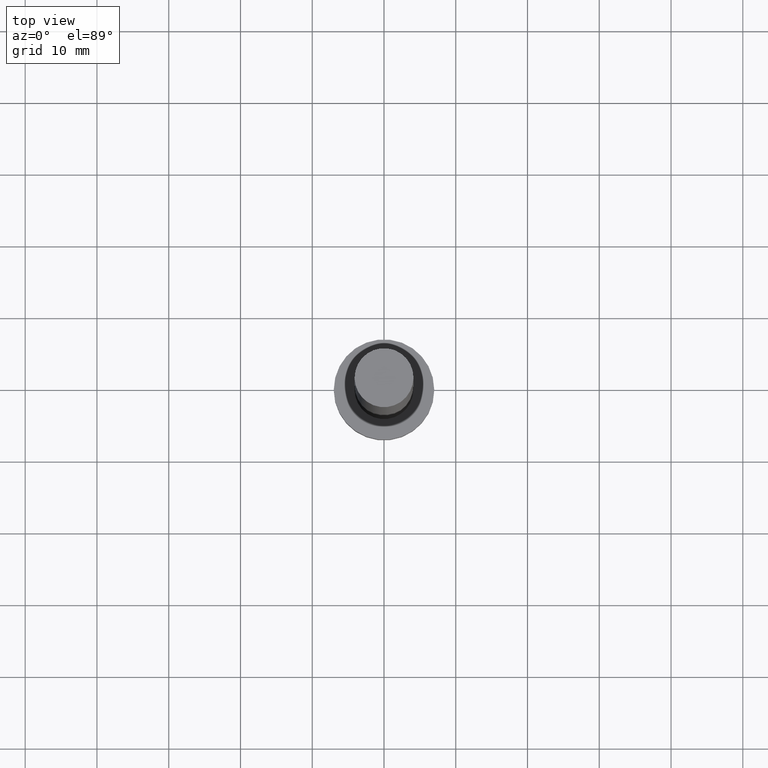
[diagram: clean part render]
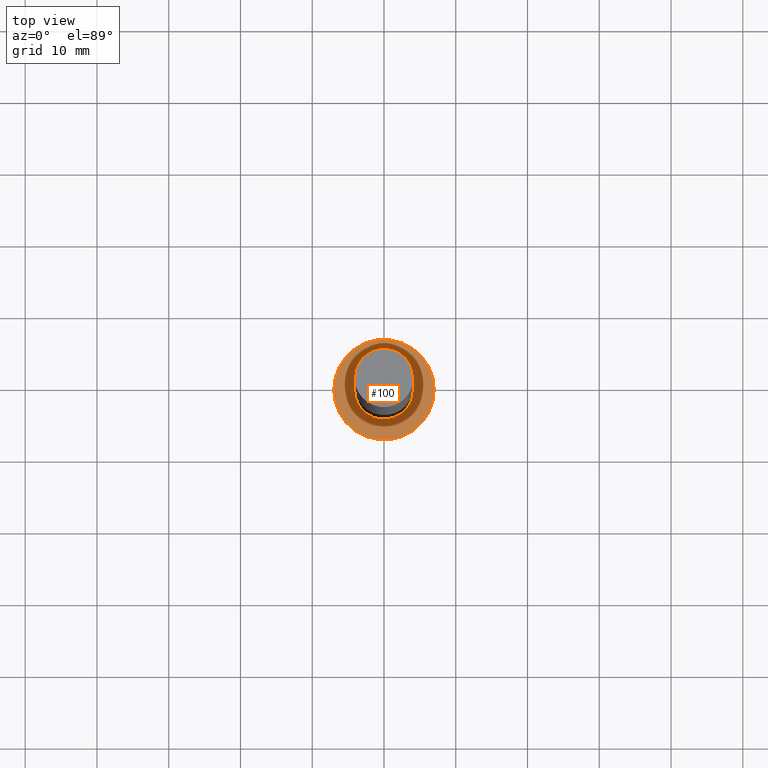
[diagram: same view with one face highlighted and labeled with its STEP entity id]
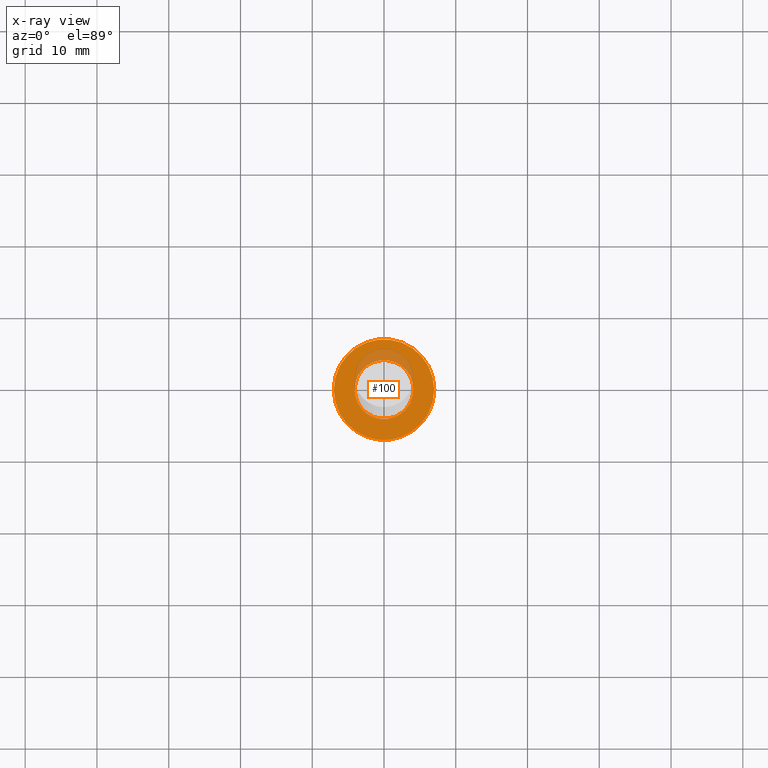
[diagram: x-ray of the same camera — body ghosted, the highlighted face saturated]
A machine part, top view. The second image highlights one B-rep face of the part: STEP entity #100.
The next image is the same camera in x-ray: the body ghosted, the highlighted face saturated — about 14% of this face is hidden behind the body in this view.
In plain terms, the highlighted planar face has unit normal (0, 0, 1).
Its self-contained STEP definition (entity closure, byte-faithful):
#13 = VERTEX_POINT ( 'NONE', #27 ) ;
#18 = PLANE ( 'NONE',  #56 ) ;
#22 = CIRCLE ( 'NONE', #125, 4.099999999999999645 ) ;
#23 = DIRECTION ( 'NONE',  ( 0.000000000000000000, 0.000000000000000000, 1.000000000000000000 ) ) ;
#27 = CARTESIAN_POINT ( 'NONE',  ( 4.099999999999999645, 5.021051876504147385E-16, 5.000000000000000000 ) ) ;
#29 = CARTESIAN_POINT ( 'NONE',  ( -7.000000000000000000, 0.000000000000000000, 5.000000000000000000 ) ) ;
#40 = CARTESIAN_POINT ( 'NONE',  ( 0.000000000000000000, 0.000000000000000000, 5.000000000000000000 ) ) ;
#46 = ORIENTED_EDGE ( 'NONE', *, *, #232, .F. ) ;
#53 = DIRECTION ( 'NONE',  ( 0.000000000000000000, 0.000000000000000000, 1.000000000000000000 ) ) ;
#56 = AXIS2_PLACEMENT_3D ( 'NONE', #238, #160, #237 ) ;
#57 = EDGE_CURVE ( 'NONE', #222, #81, #82, .T. ) ;
#62 = CARTESIAN_POINT ( 'NONE',  ( 0.000000000000000000, 0.000000000000000000, 5.000000000000000000 ) ) ;
#66 = DIRECTION ( 'NONE',  ( 1.000000000000000000, 0.000000000000000000, 0.000000000000000000 ) ) ;
#81 = VERTEX_POINT ( 'NONE', #29 ) ;
#82 = CIRCLE ( 'NONE', #228, 7.000000000000000000 ) ;
#85 = CARTESIAN_POINT ( 'NONE',  ( -4.099999999999999645, 0.000000000000000000, 5.000000000000000000 ) ) ;
#90 = EDGE_LOOP ( 'NONE', ( #113, #218 ) ) ;
#99 = AXIS2_PLACEMENT_3D ( 'NONE', #109, #159, #66 ) ;
#100 = ADVANCED_FACE ( 'NONE', ( #168, #106 ), #18, .T. ) ;
#106 = FACE_OUTER_BOUND ( 'NONE', #90, .T. ) ;
#109 = CARTESIAN_POINT ( 'NONE',  ( 0.000000000000000000, 0.000000000000000000, 5.000000000000000000 ) ) ;
#113 = ORIENTED_EDGE ( 'NONE', *, *, #188, .T. ) ;
#125 = AXIS2_PLACEMENT_3D ( 'NONE', #40, #23, #126 ) ;
#126 = DIRECTION ( 'NONE',  ( 1.000000000000000000, 0.000000000000000000, 0.000000000000000000 ) ) ;
#148 = CARTESIAN_POINT ( 'NONE',  ( 0.000000000000000000, 0.000000000000000000, 5.000000000000000000 ) ) ;
#159 = DIRECTION ( 'NONE',  ( 0.000000000000000000, 0.000000000000000000, 1.000000000000000000 ) ) ;
#160 = DIRECTION ( 'NONE',  ( 0.000000000000000000, 0.000000000000000000, 1.000000000000000000 ) ) ;
#168 = FACE_BOUND ( 'NONE', #186, .T. ) ;
#173 = CIRCLE ( 'NONE', #245, 4.099999999999999645 ) ;
#186 = EDGE_LOOP ( 'NONE', ( #46, #248 ) ) ;
#187 = DIRECTION ( 'NONE',  ( 1.000000000000000000, 0.000000000000000000, 0.000000000000000000 ) ) ;
#188 = EDGE_CURVE ( 'NONE', #81, #222, #227, .T. ) ;
#200 = DIRECTION ( 'NONE',  ( 0.000000000000000000, 0.000000000000000000, 1.000000000000000000 ) ) ;
#215 = DIRECTION ( 'NONE',  ( 1.000000000000000000, 0.000000000000000000, 0.000000000000000000 ) ) ;
#218 = ORIENTED_EDGE ( 'NONE', *, *, #57, .T. ) ;
#222 = VERTEX_POINT ( 'NONE', #233 ) ;
#227 = CIRCLE ( 'NONE', #99, 7.000000000000000000 ) ;
#228 = AXIS2_PLACEMENT_3D ( 'NONE', #148, #53, #187 ) ;
#232 = EDGE_CURVE ( 'NONE', #253, #13, #173, .T. ) ;
#233 = CARTESIAN_POINT ( 'NONE',  ( 7.000000000000000000, 8.572527594031473190E-16, 5.000000000000000000 ) ) ;
#237 = DIRECTION ( 'NONE',  ( 1.000000000000000000, 0.000000000000000000, -0.000000000000000000 ) ) ;
#238 = CARTESIAN_POINT ( 'NONE',  ( 0.000000000000000000, 0.000000000000000000, 5.000000000000000000 ) ) ;
#245 = AXIS2_PLACEMENT_3D ( 'NONE', #62, #200, #215 ) ;
#247 = EDGE_CURVE ( 'NONE', #13, #253, #22, .T. ) ;
#248 = ORIENTED_EDGE ( 'NONE', *, *, #247, .F. ) ;
#253 = VERTEX_POINT ( 'NONE', #85 ) ;